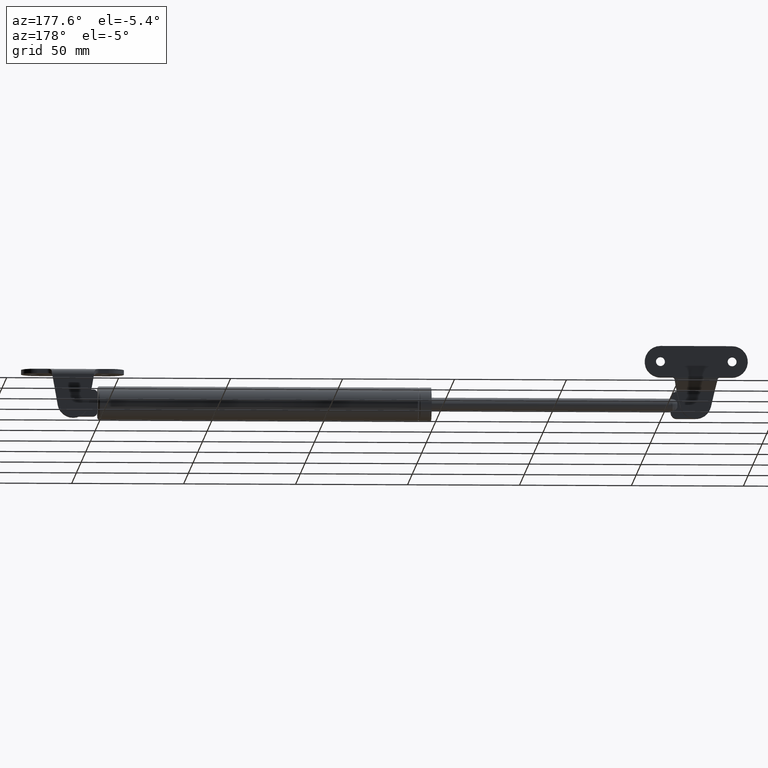
[diagram: clean part render]
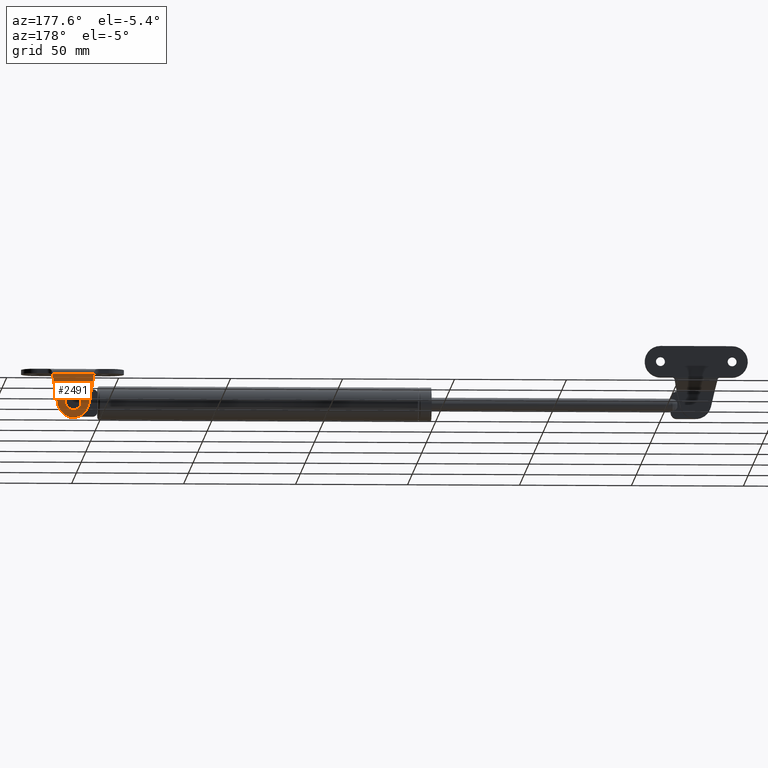
[diagram: same view with one face highlighted and labeled with its STEP entity id]
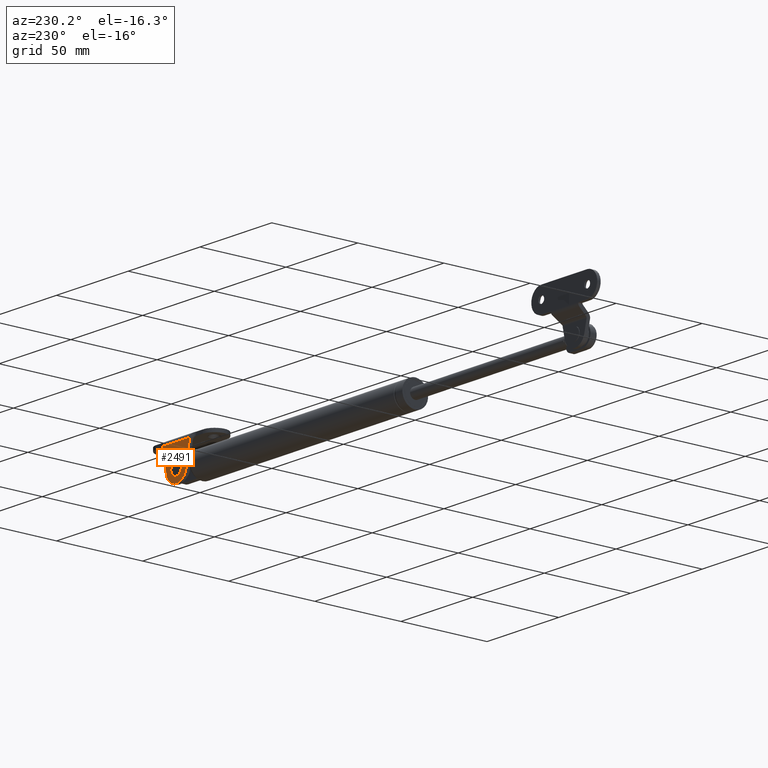
[diagram: same view with one face highlighted and labeled with its STEP entity id]
A machine part, auxiliary view. The second image highlights one B-rep face of the part: STEP entity #2491.
A second angle (auxiliary view) of the same face is appended — the face is thin or edge-on in the first view.
In plain terms, the highlighted planar face has unit normal (-0, 1, 0).
Its self-contained STEP definition (entity closure, byte-faithful):
#144=LINE('',#4270,#286);
#153=LINE('',#4345,#295);
#159=LINE('',#4381,#301);
#160=LINE('',#4384,#302);
#164=LINE('',#4390,#306);
#286=VECTOR('',#3207,12.7546905355384);
#295=VECTOR('',#3238,18.6192565563122);
#301=VECTOR('',#3260,1.17079612301127);
#302=VECTOR('',#3263,12.7546905355383);
#306=VECTOR('',#3269,1.17079612301127);
#416=PLANE('',#2730);
#556=FACE_BOUND('',#850,.T.);
#649=FACE_OUTER_BOUND('',#849,.T.);
#849=EDGE_LOOP('',(#1994,#1995,#1996,#1997,#1998,#1999));
#850=EDGE_LOOP('',(#2000));
#1010=CIRCLE('',#2693,3.50000000000001);
#1024=CIRCLE('',#2729,7.);
#1200=VERTEX_POINT('',#4247);
#1202=VERTEX_POINT('',#4251);
#1207=VERTEX_POINT('',#4268);
#1209=VERTEX_POINT('',#4273);
#1227=VERTEX_POINT('',#4339);
#1228=VERTEX_POINT('',#4344);
#1235=VERTEX_POINT('',#4383);
#1462=EDGE_CURVE('',#1200,#1200,#1010,.T.);
#1470=EDGE_CURVE('',#1207,#1202,#144,.T.);
#1492=EDGE_CURVE('',#1227,#1228,#153,.T.);
#1504=EDGE_CURVE('',#1228,#1209,#159,.T.);
#1505=EDGE_CURVE('',#1209,#1235,#160,.T.);
#1509=EDGE_CURVE('',#1202,#1227,#164,.T.);
#1514=EDGE_CURVE('',#1235,#1207,#1024,.T.);
#1994=ORIENTED_EDGE('',*,*,#1492,.F.);
#1995=ORIENTED_EDGE('',*,*,#1509,.F.);
#1996=ORIENTED_EDGE('',*,*,#1470,.F.);
#1997=ORIENTED_EDGE('',*,*,#1514,.F.);
#1998=ORIENTED_EDGE('',*,*,#1505,.F.);
#1999=ORIENTED_EDGE('',*,*,#1504,.F.);
#2000=ORIENTED_EDGE('',*,*,#1462,.T.);
#2491=ADVANCED_FACE('',(#649,#556),#416,.T.);
#2693=AXIS2_PLACEMENT_3D('',#4248,#3193,#3194);
#2729=AXIS2_PLACEMENT_3D('',#4404,#3291,#3292);
#2730=AXIS2_PLACEMENT_3D('',#4405,#3293,#3294);
#3193=DIRECTION('center_axis',(0.,-1.,0.));
#3194=DIRECTION('ref_axis',(0.,2.22044604925031E-15,-1.));
#3207=DIRECTION('',(-0.173477881050616,6.01872305642432E-18,-0.984837765718897));
#3238=DIRECTION('',(1.,0.,0.));
#3260=DIRECTION('',(-0.173477881050616,6.01872305642431E-18,0.984837765718897));
#3263=DIRECTION('',(-0.173477881050616,6.01872305642431E-18,0.984837765718897));
#3269=DIRECTION('',(-0.173477881050616,6.01872305642432E-18,-0.984837765718897));
#3291=DIRECTION('center_axis',(-3.46944695195361E-17,-1.,0.));
#3292=DIRECTION('ref_axis',(1.,-3.46944695195361E-17,0.));
#3293=DIRECTION('center_axis',(0.,1.,0.));
#3294=DIRECTION('ref_axis',(0.,0.,1.));
#4247=CARTESIAN_POINT('',(0.,9.,11.5));
#4248=CARTESIAN_POINT('Origin',(0.,9.,15.));
#4251=CARTESIAN_POINT('',(-9.10652104759382,9.,3.65304423789877));
#4268=CARTESIAN_POINT('',(-6.89386436003228,9.,16.2143451673543));
#4270=CARTESIAN_POINT('',(-6.89386436003228,9.,16.2143451673543));
#4273=CARTESIAN_POINT('',(9.10652104759381,9.,3.65304423789877));
#4339=CARTESIAN_POINT('',(-9.30962827815609,9.,2.5));
#4344=CARTESIAN_POINT('',(9.30962827815609,9.,2.5));
#4345=CARTESIAN_POINT('',(1.00354373465368E-15,9.,2.5));
#4381=CARTESIAN_POINT('',(9.75,9.,2.22044604925031E-15));
#4383=CARTESIAN_POINT('',(6.89386436003228,9.,16.2143451673543));
#4384=CARTESIAN_POINT('',(9.75,9.,2.22044604925031E-15));
#4390=CARTESIAN_POINT('',(-6.89386436003228,9.,16.2143451673543));
#4404=CARTESIAN_POINT('Origin',(0.,9.,15.));
#4405=CARTESIAN_POINT('Origin',(2.00708746930737E-15,9.,14.9999989801308));